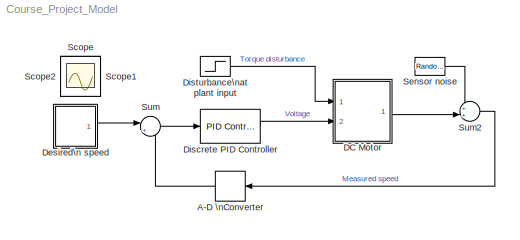
MODEL Course_Project_Model
KIND model
CONFIG PreLoadFcn = % Motor Parameters\n\nJ=0.01;     %kg*m^2\nb=0.1;      %N*m/(rad/s)\nK=0.01;     %V/(rad/s)\nR=1;        %Ohm\nL=0.5;      %H
BLOCK [Step]  Disturbance\nat plant input
  After = 0.2
  SID = 12
  SampleTime = 0
  Time = 5
BLOCK [ZeroOrderHold] A-D \nConverter
  SID = 30
  SampleTime = 0.02
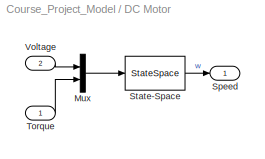
BLOCK [SubSystem] DC Motor
  Ports = [2, 1]
  RequestExecContextInheritance = off
  SID = 2
BLOCK [Mux] DC Motor/Mux
  DisplayOption = bar
  Inputs = 2
  Ports = [2, 1]
  SID = 5
BLOCK [Outport] DC Motor/Speed
  IconDisplay = Port number
  SID = 7
BLOCK [StateSpace] DC Motor/State-Space
  A = [-b/J K/J; -K/L -R/L]
  B = [0 -1/J; 1/L 0]
  C = [1 0]
  D = [0 0]
  Ports = [1, 1]
  SID = 6
  X0 = 0
BLOCK [Inport] DC Motor/Torque
  IconDisplay = Port number
  SID = 4
BLOCK [Inport] DC Motor/Voltage
  IconDisplay = Port number
  Port = 2
  SID = 3
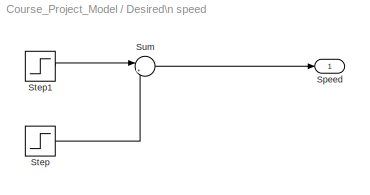
BLOCK [SubSystem] Desired\n speed
  Ports = [0, 1]
  RequestExecContextInheritance = off
  SID = 20
BLOCK [Outport] Desired\n speed/Speed
  IconDisplay = Port number
  SID = 21
BLOCK [Step] Desired\n speed/Step
  After = -4
  SID = 24
  SampleTime = 0.02
  Time = 7
BLOCK [Step] Desired\n speed/Step1
  After = 2
  SID = 25
  SampleTime = 0.02
BLOCK [Sum] Desired\n speed/Sum
  IconShape = round
  InputSameDT = off
  Inputs = |++
  OutDataTypeStr = Inherit: Inherit via internal rule
  Ports = [2, 1]
  SID = 23
  SaturateOnIntegerOverflow = off
BLOCK [Reference] Discrete PID Controller  REF=simulink/Continuous/PID Controller
  AntiWindupMode = back-calculation
  Controller = PID
  ControllerParametersSource = internal
  D = 0.324117712006743
  DGainOutDataTypeStr = Inherit: Inherit via internal rule
  DOutDataTypeStr = Inherit: Inherit via internal rule
  DOutMax = []
  DOutMin = []
  DParamDataTypeStr = Inherit: Inherit via internal rule
  DParamMax = []
  DParamMin = []
  DProdOutDataTypeStr = Inherit: Inherit via internal rule
  DifferentiatorICPrevScaledInput = 0
  DifferentiatorOutDataTypeStr = Inherit: Inherit via internal rule
  DifferentiatorOutMax = []
  DifferentiatorOutMin = []
  ExternalReset = none
  FilterContinuousStateAttributes = ''
  FilterMethod = Forward Euler
  FilterOutDataTypeStr = Inherit: Inherit via internal rule
  FilterOutMax = []
  FilterOutMin = []
  FilterRTWStateStorageClass = Auto
  FilterStateMustResolveToSignalObject = off
  Form = Parallel
  I = 71.5567329822431
  IGainOutDataTypeStr = Inherit: Inherit via internal rule
  IOutDataTypeStr = Inherit: Inherit via internal rule
  IOutMax = []
  IOutMin = []
  IParamDataTypeStr = Inherit: Inherit via internal rule
  IParamMax = []
  IParamMin = []
  IProdOutDataTypeStr = Inherit: Inherit via internal rule
  IgnoreLimit = off
  InitialConditionForFilter = 0
  InitialConditionForIntegrator = 0
  InitialConditionSource = internal
  IntegratorContinuousStateAttributes = ''
  IntegratorMethod = Forward Euler
  IntegratorOutDataTypeStr = Inherit: Inherit via internal rule
  IntegratorOutMax = []
  IntegratorOutMin = []
  IntegratorRTWStateStorageClass = Auto
  IntegratorStateMustResolveToSignalObject = off
  Kb = 1
  KbOutDataTypeStr = Inherit: Inherit via internal rule
  KbOutMax = []
  KbOutMin = []
  KbParamDataTypeStr = Inherit: Inherit via internal rule
  KbParamMax = []
  KbParamMin = []
  Kt = 1
  KtOutDataTypeStr = Inherit: Inherit via internal rule
  KtOutMax = []
  KtOutMin = []
  KtParamDataTypeStr = Inherit: Inherit via internal rule
  KtParamMax = []
  KtParamMin = []
  LimitOutput = off
  LinearizeAsGain = on
  LockScale = off
  LowerSaturationLimit = -10
  N = 56.3231657017863
  NGainOutDataTypeStr = Inherit: Inherit via internal rule
  NOutDataTypeStr = Inherit: Inherit via internal rule
  NOutMax = []
  NOutMin = []
  NParamDataTypeStr = Inherit: Inherit via internal rule
  NParamMax = []
  NParamMin = []
  NProdOutDataTypeStr = Inherit: Inherit via internal rule
  P = 13.9650000684377
  PGainOutDataTypeStr = Inherit: Inherit via internal rule
  POutDataTypeStr = Inherit: Inherit via internal rule
  POutMax = []
  POutMin = []
  PParamDataTypeStr = Inherit: Inherit via internal rule
  PParamMax = []
  PParamMin = []
  PProdOutDataTypeStr = Inherit: Inherit via internal rule
  Ports = [1, 1]
  RndMeth = Floor
  SID = 18
  SampleTime = 0.02
  SaturateOnIntegerOverflow = off
  SaturationOutDataTypeStr = Inherit: Same as input
  SaturationOutMax = []
  SaturationOutMin = []
  SourceBlock = simulink/Continuous/PID Controller
  SourceType = PID 1dof
  SumAccumDataTypeStr = Inherit: Inherit via internal rule
  SumDAccumDataTypeStr = Inherit: Inherit via internal rule
  SumDOutDataTypeStr = Inherit: Inherit via internal rule
  SumDOutMax = []
  SumDOutMin = []
  SumI1AccumDataTypeStr = Inherit: Inherit via internal rule
  SumI1OutDataTypeStr = Inherit: Inherit via internal rule
  SumI1OutMax = []
  SumI1OutMin = []
  SumI2AccumDataTypeStr = Inherit: Inherit via internal rule
  SumI2OutDataTypeStr = Inherit: Inherit via internal rule
  SumI2OutMax = []
  SumI2OutMin = []
  SumI3AccumDataTypeStr = Inherit: Inherit via internal rule
  SumI3OutDataTypeStr = Inherit: Inherit via internal rule
  SumI3OutMax = []
  SumI3OutMin = []
  SumOutDataTypeStr = Inherit: Inherit via internal rule
  SumOutMax = []
  SumOutMin = []
  TimeDomain = Discrete-time
  TrackingMode = off
  UpperSaturationLimit = 10
  UseFilter = on
  ZeroCross = on
BLOCK [Scope] Scope
  Floating = off
  IOType = viewer
  MaxDataPoints = 7500
  NumInputPorts = 1
  Ports = []
  SID = 15
  SampleTime = 0
  ZoomMode = yonly
BLOCK [Scope] Scope1
  Floating = off
  IOType = viewer
  LegendLocations = 0.81478      0.8407     0.14496    0.072289\n0.86099     0.57095    0.098739     0.04083\n0.80112     0.26975     0.15861     0.04083
  LimitDataPoints = off
  MaxDataPoints = 7500
  NumInputPorts = 3
  Ports = []
  SID = 19
  SampleTime = 0
  SaveName = ScopeData2
  ShowLegends = on
  TimeRange = 10
  YMax = 3~60~0.3
  YMin = -3~-60~-0.1
BLOCK [Scope] Scope2
  Floating = off
  IOType = viewer
  MaxDataPoints = 7500
  NumInputPorts = 1
  Ports = []
  SID = 16
  SampleTime = 0
  SaveName = ScopeData1
  YMax = 50
  YMin = -50
BLOCK [RandomNumber] Sensor noise
  SID = 9
  SampleTime = 0
  Variance = 0.05
BLOCK [Sum] Sum
  IconShape = round
  InputSameDT = off
  Inputs = |+-
  OutDataTypeStr = Inherit: Inherit via internal rule
  Ports = [2, 1]
  SID = 13
  SaturateOnIntegerOverflow = off
BLOCK [Sum] Sum2
  IconShape = round
  InputSameDT = off
  Inputs = ++|
  OutDataTypeStr = Inherit: Inherit via internal rule
  Ports = [2, 1]
  SID = 28
  SaturateOnIntegerOverflow = off
LINE  Disturbance\nat plant input:1 -> DC Motor:1
LINE A-D \nConverter:1 -> Sum:2
LINE DC Motor/Mux:1 -> DC Motor/State-Space:1
LINE DC Motor/State-Space:1 -> DC Motor/Speed:1
LINE DC Motor/Torque:1 -> DC Motor/Mux:2
LINE DC Motor/Voltage:1 -> DC Motor/Mux:1
LINE DC Motor:1 -> Sum2:2
LINE Desired\n speed/Step1:1 -> Desired\n speed/Sum:1
LINE Desired\n speed/Step:1 -> Desired\n speed/Sum:2
LINE Desired\n speed/Sum:1 -> Desired\n speed/Speed:1
LINE Desired\n speed:1 -> Sum:1
LINE Discrete PID Controller:1 -> DC Motor:2
LINE Sensor noise:1 -> Sum2:1
LINE Sum2:1 -> A-D \nConverter:1
LINE Sum:1 -> Discrete PID Controller:1
